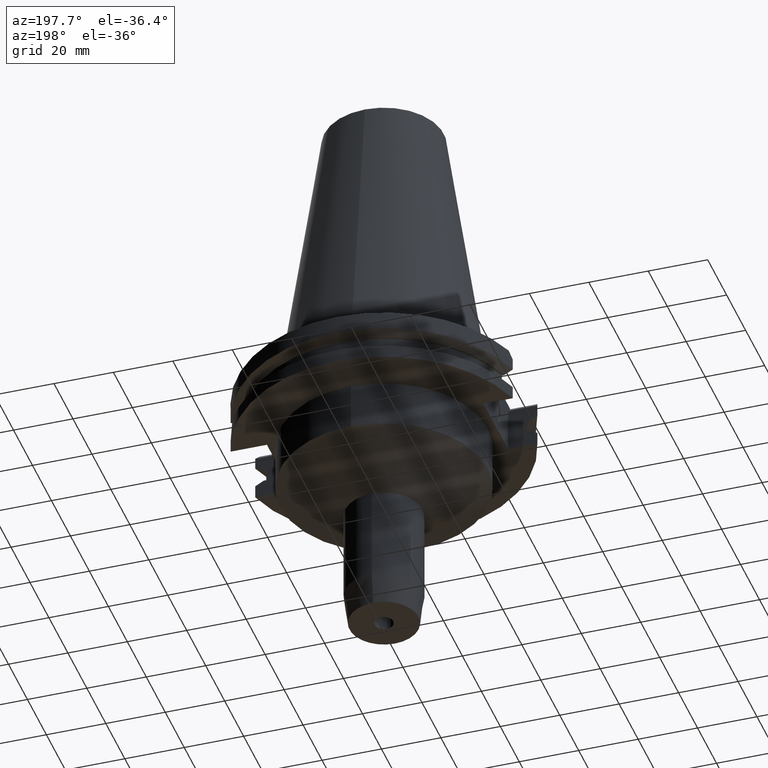
[diagram: clean part render]
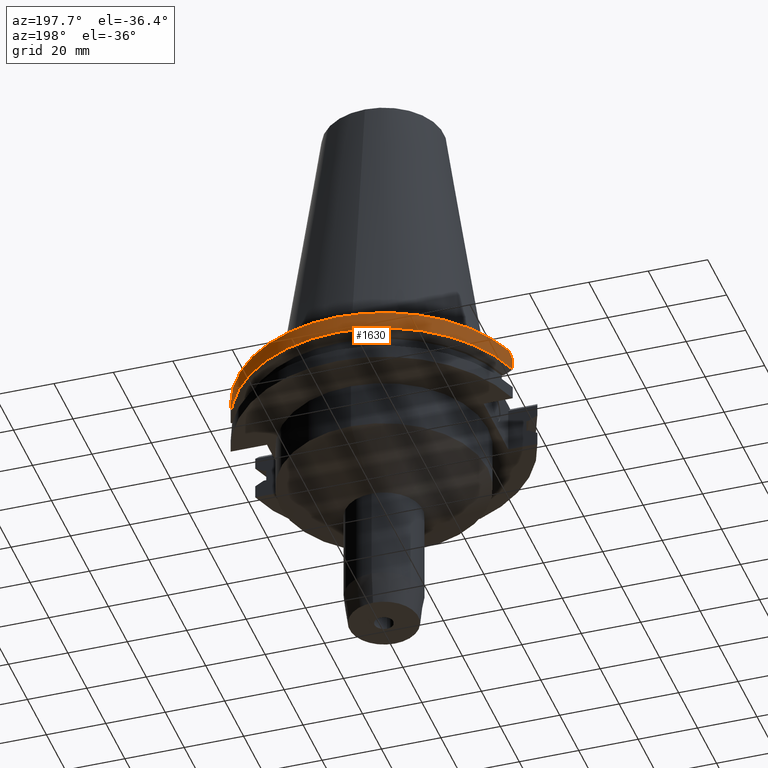
[diagram: same view with one face highlighted and labeled with its STEP entity id]
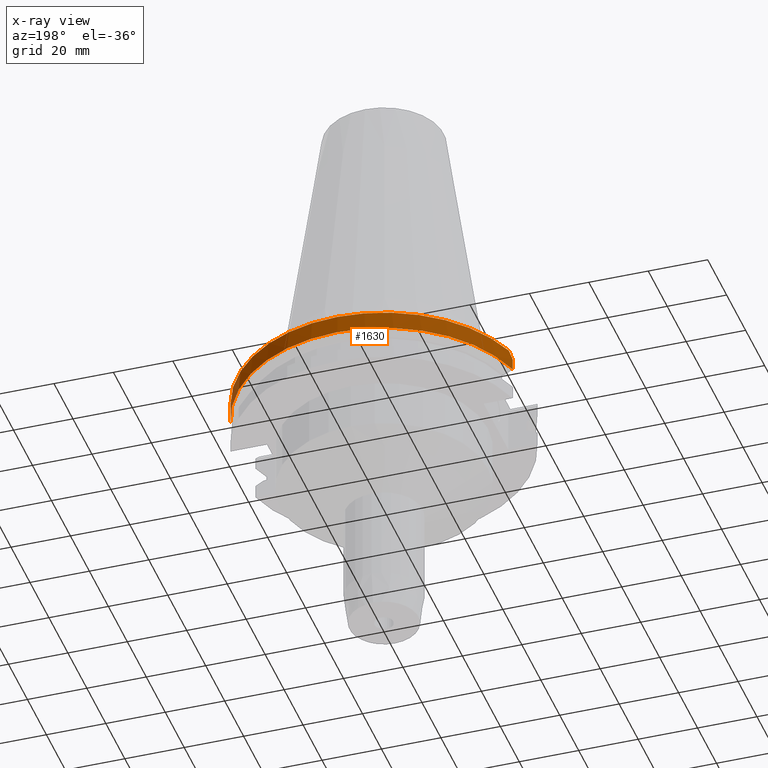
[diagram: x-ray of the same camera — body ghosted, the highlighted face saturated]
A machine part, auxiliary view. The second image highlights one B-rep face of the part: STEP entity #1630.
The next image is the same camera in x-ray: the body ghosted, the highlighted face saturated — about 0% of this face is hidden behind the body in this view.
In plain terms, the highlighted cylindrical surface (partial cylindrical patch) has radius 49.2125 mm, axis along (0, 0, -1).
Its self-contained STEP definition (entity closure, byte-faithful):
#138=CARTESIAN_POINT('',(0.E0,2.585535554700E-14,-1.5E0));
#139=DIRECTION('',(0.E0,0.E0,-1.E0));
#140=DIRECTION('',(-9.514024724200E-1,3.079502159004E-1,0.E0));
#141=AXIS2_PLACEMENT_3D('',#138,#139,#140);
#146=CARTESIAN_POINT('',(0.E0,2.585535554700E-14,-1.5E0));
#147=DIRECTION('',(0.E0,0.E0,-1.E0));
#148=DIRECTION('',(0.E0,1.E0,0.E0));
#149=AXIS2_PLACEMENT_3D('',#146,#147,#148);
#288=DIRECTION('',(-2.622645846769E-13,-3.642563676068E-14,1.E0));
#289=VECTOR('',#288,3.901333230925E0);
#290=CARTESIAN_POINT('',(4.747671146204E1,1.2955E1,-7.601333230925E0));
#291=LINE('',#290,#289);
#295=CARTESIAN_POINT('',(4.747671146204E1,1.2955E1,-3.699999999999E0));
#296=CARTESIAN_POINT('',(4.727588310257E1,1.369098379593E1,-2.964016204073E0));
#297=CARTESIAN_POINT('',(4.705739607797E1,1.442433483212E1,-2.230665167880E0));
#298=CARTESIAN_POINT('',(4.682089417397E1,1.5155E1,-1.5E0));
#303=CARTESIAN_POINT('',(-4.682089417397E1,1.5155E1,-1.5E0));
#304=CARTESIAN_POINT('',(-4.705739607797E1,1.442433483212E1,-2.230665167880E0));
#305=CARTESIAN_POINT('',(-4.727588310257E1,1.369098379593E1,-2.964016204073E0));
#306=CARTESIAN_POINT('',(-4.747671146204E1,1.2955E1,-3.699999999999E0));
#311=DIRECTION('',(-2.622645846769E-13,3.460435492264E-14,-1.E0));
#312=VECTOR('',#311,3.901333230925E0);
#313=CARTESIAN_POINT('',(-4.747671146204E1,1.2955E1,-3.7E0));
#314=LINE('',#313,#312);
#530=CARTESIAN_POINT('',(4.747671146204E1,1.2955E1,-7.601333230925E0));
#535=CARTESIAN_POINT('',(0.E0,1.121722380079E-14,-7.601333230926E0));
#536=DIRECTION('',(0.E0,0.E0,1.E0));
#537=DIRECTION('',(9.647287063661E-1,2.632461264923E-1,0.E0));
#538=AXIS2_PLACEMENT_3D('',#535,#536,#537);
#543=CARTESIAN_POINT('',(0.E0,1.121722380079E-14,-7.601333230926E0));
#544=DIRECTION('',(0.E0,0.E0,1.E0));
#545=DIRECTION('',(0.E0,1.E0,0.E0));
#546=AXIS2_PLACEMENT_3D('',#543,#544,#545);
#551=CARTESIAN_POINT('',(-4.747671146204E1,1.2955E1,-7.601333230925E0));
#1360=VERTEX_POINT('',#551);
#1361=CARTESIAN_POINT('',(-4.747671146204E1,1.2955E1,-3.7E0));
#1362=VERTEX_POINT('',#1361);
#1388=VERTEX_POINT('',#530);
#1389=CARTESIAN_POINT('',(0.E0,4.92125E1,-7.601333230926E0));
#1390=VERTEX_POINT('',#1389);
#1395=CARTESIAN_POINT('',(4.747671146204E1,1.2955E1,-3.7E0));
#1396=VERTEX_POINT('',#1395);
#1397=VERTEX_POINT('',#298);
#1398=CARTESIAN_POINT('',(-1.598721155460E-14,4.92125E1,-1.5E0));
#1399=VERTEX_POINT('',#1398);
#1400=CARTESIAN_POINT('',(-4.682089417397E1,1.5155E1,-1.5E0));
#1401=VERTEX_POINT('',#1400);
#1611=CARTESIAN_POINT('',(0.E0,2.585535554700E-14,1.11125E2));
#1612=DIRECTION('',(0.E0,0.E0,-1.E0));
#1613=DIRECTION('',(0.E0,-1.E0,0.E0));
#1614=AXIS2_PLACEMENT_3D('',#1611,#1612,#1613);
#1615=CYLINDRICAL_SURFACE('',#1614,4.92125E1);
#1616=ORIENTED_EDGE('',*,*,#1581,.T.);
#1617=ORIENTED_EDGE('',*,*,#1603,.T.);
#1618=ORIENTED_EDGE('',*,*,#1509,.F.);
#1619=ORIENTED_EDGE('',*,*,#1507,.F.);
#1621=ORIENTED_EDGE('',*,*,#1620,.T.);
#1623=ORIENTED_EDGE('',*,*,#1622,.T.);
#1625=ORIENTED_EDGE('',*,*,#1624,.F.);
#1627=ORIENTED_EDGE('',*,*,#1626,.F.);
#1628=EDGE_LOOP('',(#1616,#1617,#1618,#1619,#1621,#1623,#1625,#1627));
#1629=FACE_OUTER_BOUND('',#1628,.F.);
#142=CIRCLE('',#141,4.92125E1);
#150=CIRCLE('',#149,4.92125E1);
#299=B_SPLINE_CURVE_WITH_KNOTS('',3,(#295,#296,#297,#298),.UNSPECIFIED.,.F.,.F.,
(4,4),(0.E0,1.E0),.UNSPECIFIED.);
#307=B_SPLINE_CURVE_WITH_KNOTS('',3,(#303,#304,#305,#306),.UNSPECIFIED.,.F.,.F.,
(4,4),(0.E0,1.E0),.UNSPECIFIED.);
#539=CIRCLE('',#538,4.92125E1);
#547=CIRCLE('',#546,4.92125E1);
#1507=EDGE_CURVE('',#1401,#1399,#142,.T.);
#1509=EDGE_CURVE('',#1399,#1397,#150,.T.);
#1581=EDGE_CURVE('',#1388,#1396,#291,.T.);
#1603=EDGE_CURVE('',#1396,#1397,#299,.T.);
#1620=EDGE_CURVE('',#1401,#1362,#307,.T.);
#1622=EDGE_CURVE('',#1362,#1360,#314,.T.);
#1624=EDGE_CURVE('',#1390,#1360,#547,.T.);
#1626=EDGE_CURVE('',#1388,#1390,#539,.T.);
#1630=ADVANCED_FACE('',(#1629),#1615,.T.);